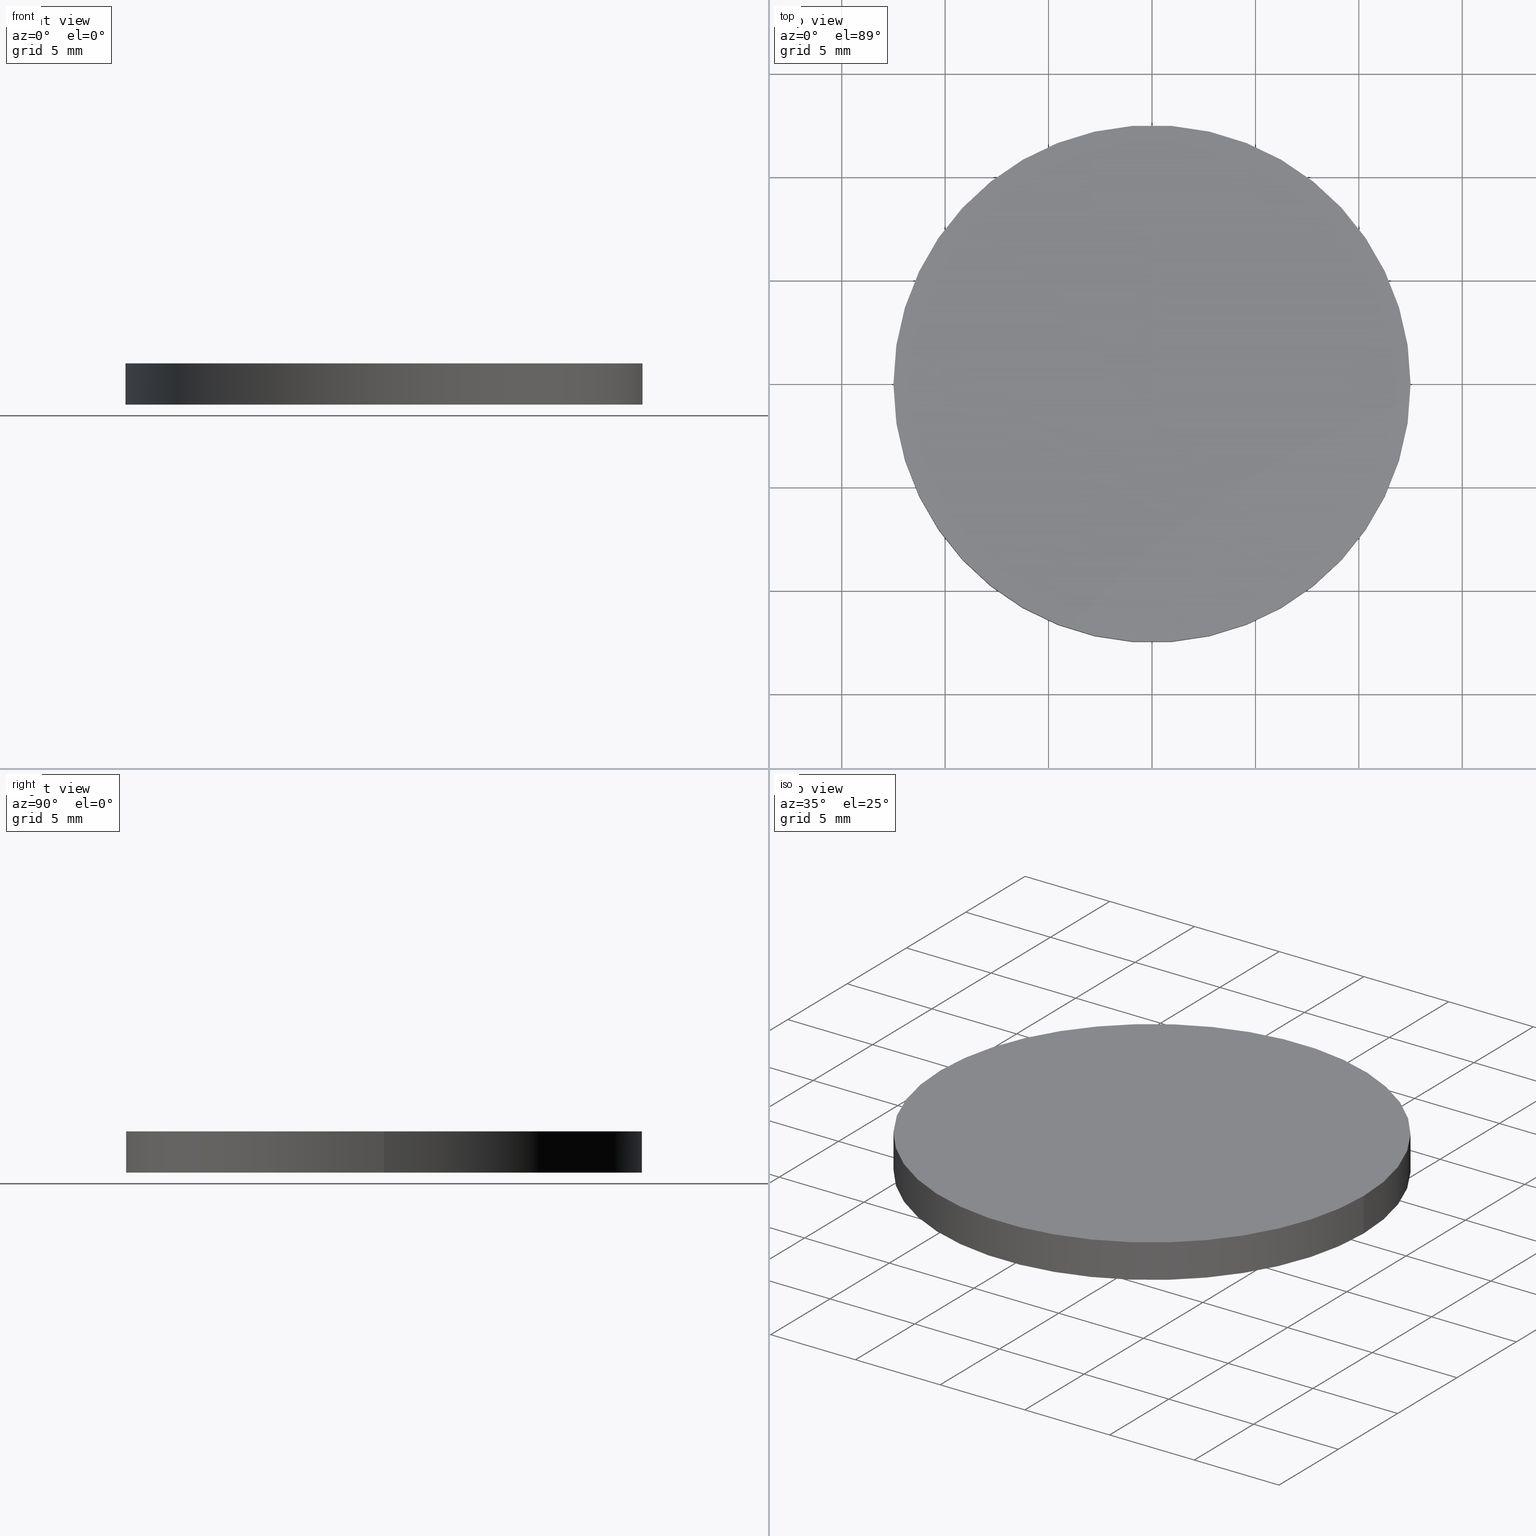
[diagram: canonical four-view strip — front | top / right | iso, engineering-drawing reading convention]
A machine part, canonical four-view strip (front | top / right | iso — engineering-drawing reading convention). The complete STEP part file that produces these views, byte-faithful:
ISO-10303-21;
HEADER;
FILE_DESCRIPTION (( 'STEP AP214' ),
    '1' );
FILE_NAME ('190165.STEP',
    '2019-07-18T08:29:09',
    ( 'user' ),
    ( '΢���й�' ),
    'SwSTEP 2.0',
    'SolidWorks 2016',
    '' );
FILE_SCHEMA (( 'AUTOMOTIVE_DESIGN' ));
ENDSEC;

DATA;
#1 = CARTESIAN_POINT ( 'NONE',  ( -12.50000000000000000, 0.0000000000000000000, 0.0000000000000000000 ) ) ;
#2 = PRODUCT_DEFINITION ( 'δ֪', '', #130, #116 ) ;
#3 = PRODUCT_RELATED_PRODUCT_CATEGORY ( 'part', '', ( #112 ) ) ;
#4 = ADVANCED_BREP_SHAPE_REPRESENTATION ( '190165', ( #118, #8 ), #49 ) ;
#5 = PRESENTATION_LAYER_ASSIGNMENT (  '', '', ( #79 ) ) ;
#6 = AXIS2_PLACEMENT_3D ( 'NONE', #138, #137, #64 ) ;
#7 = EDGE_CURVE ( 'NONE', #50, #30, #58, .T. ) ;
#8 = AXIS2_PLACEMENT_3D ( 'NONE', #105, #83, #9 ) ;
#9 = DIRECTION ( 'NONE',  ( 1.000000000000000000, 0.0000000000000000000, 0.0000000000000000000 ) ) ;
#10 = AXIS2_PLACEMENT_3D ( 'NONE', #12, #44, #52 ) ;
#11 =( NAMED_UNIT ( * ) SI_UNIT ( $, .STERADIAN. ) SOLID_ANGLE_UNIT ( ) );
#12 = CARTESIAN_POINT ( 'NONE',  ( 0.0000000000000000000, 0.0000000000000000000, 2.000000000000000000 ) ) ;
#13 = DIRECTION ( 'NONE',  ( 1.000000000000000000, 0.0000000000000000000, 0.0000000000000000000 ) ) ;
#14 = ADVANCED_FACE ( 'NONE', ( #55 ), #32, .T. ) ;
#15 = DIRECTION ( 'NONE',  ( -0.0000000000000000000, -0.0000000000000000000, -1.000000000000000000 ) ) ;
#16 = CARTESIAN_POINT ( 'NONE',  ( -12.50000000000000000, 0.0000000000000000000, 2.000000000000000000 ) ) ;
#17 = AXIS2_PLACEMENT_3D ( 'NONE', #66, #15, #39 ) ;
#18 = CIRCLE ( 'NONE', #131, 12.50000000000000000 ) ;
#19 = AXIS2_PLACEMENT_3D ( 'NONE', #56, #114, #46 ) ;
#20 = LINE ( 'NONE', #54, #96 ) ;
#21 = EDGE_CURVE ( 'NONE', #81, #61, #47, .T. ) ;
#22 = ORIENTED_EDGE ( 'NONE', *, *, #21, .F. ) ;
#23 = COLOUR_RGB ( '',1.000000000000000000, 1.000000000000000000, 1.000000000000000000 ) ;
#24 = UNCERTAINTY_MEASURE_WITH_UNIT (LENGTH_MEASURE( 1.000000000000000100E-005 ), #104, 'distance_accuracy_value', 'NONE');
#25 =( GEOMETRIC_REPRESENTATION_CONTEXT ( 3 ) GLOBAL_UNCERTAINTY_ASSIGNED_CONTEXT ( ( #93 ) ) GLOBAL_UNIT_ASSIGNED_CONTEXT ( ( #38, #97, #26 ) ) REPRESENTATION_CONTEXT ( 'NONE', 'WORKASPACE' ) );
#26 =( NAMED_UNIT ( * ) SI_UNIT ( $, .STERADIAN. ) SOLID_ANGLE_UNIT ( ) );
#27 = AXIS2_PLACEMENT_3D ( 'NONE', #57, #101, #40 ) ;
#28 = CARTESIAN_POINT ( 'NONE',  ( 0.0000000000000000000, 0.0000000000000000000, 2.000000000000000000 ) ) ;
#29 = DIRECTION ( 'NONE',  ( -0.0000000000000000000, -0.0000000000000000000, -1.000000000000000000 ) ) ;
#30 = VERTEX_POINT ( 'NONE', #16 ) ;
#31 = DIRECTION ( 'NONE',  ( 1.000000000000000000, 0.0000000000000000000, -0.0000000000000000000 ) ) ;
#32 = PLANE ( 'NONE',  #41 ) ;
#33 = STYLED_ITEM ( 'NONE', ( #42 ), #4 ) ;
#34 = SHAPE_DEFINITION_REPRESENTATION ( #117, #4 ) ;
#35 = EDGE_LOOP ( 'NONE', ( #139, #132 ) ) ;
#36 = FACE_OUTER_BOUND ( 'NONE', #128, .T. ) ;
#37 =( NAMED_UNIT ( * ) PLANE_ANGLE_UNIT ( ) SI_UNIT ( $, .RADIAN. ) );
#38 =( LENGTH_UNIT ( ) NAMED_UNIT ( * ) SI_UNIT ( .MILLI., .METRE. ) );
#39 = DIRECTION ( 'NONE',  ( -1.000000000000000000, 0.0000000000000000000, 0.0000000000000000000 ) ) ;
#40 = DIRECTION ( 'NONE',  ( 1.000000000000000000, 0.0000000000000000000, 0.0000000000000000000 ) ) ;
#41 = AXIS2_PLACEMENT_3D ( 'NONE', #129, #99, #31 ) ;
#42 = PRESENTATION_STYLE_ASSIGNMENT (( #43 ) ) ;
#43 = SURFACE_STYLE_USAGE ( .BOTH. , #111 ) ;
#44 = DIRECTION ( 'NONE',  ( -0.0000000000000000000, -0.0000000000000000000, -1.000000000000000000 ) ) ;
#45 = SURFACE_STYLE_USAGE ( .BOTH. , #113 ) ;
#46 = DIRECTION ( 'NONE',  ( 1.000000000000000000, 0.0000000000000000000, 0.0000000000000000000 ) ) ;
#47 = CIRCLE ( 'NONE', #19, 12.50000000000000000 ) ;
#48 = ORIENTED_EDGE ( 'NONE', *, *, #70, .T. ) ;
#49 =( GEOMETRIC_REPRESENTATION_CONTEXT ( 3 ) GLOBAL_UNCERTAINTY_ASSIGNED_CONTEXT ( ( #73 ) ) GLOBAL_UNIT_ASSIGNED_CONTEXT ( ( #123, #85, #11 ) ) REPRESENTATION_CONTEXT ( 'NONE', 'WORKASPACE' ) );
#50 = VERTEX_POINT ( 'NONE', #127 ) ;
#51 = FILL_AREA_STYLE ('',( #106 ) ) ;
#52 = DIRECTION ( 'NONE',  ( -1.000000000000000000, 0.0000000000000000000, 0.0000000000000000000 ) ) ;
#53 = DIRECTION ( 'NONE',  ( 1.000000000000000000, 0.0000000000000000000, 0.0000000000000000000 ) ) ;
#54 = CARTESIAN_POINT ( 'NONE',  ( 12.50000000000000000, 1.530808498934191500E-015, 2.000000000000000000 ) ) ;
#55 = FACE_OUTER_BOUND ( 'NONE', #35, .T. ) ;
#56 = CARTESIAN_POINT ( 'NONE',  ( 0.0000000000000000000, 0.0000000000000000000, 0.0000000000000000000 ) ) ;
#57 = CARTESIAN_POINT ( 'NONE',  ( 0.0000000000000000000, 0.0000000000000000000, 2.000000000000000000 ) ) ;
#58 = CIRCLE ( 'NONE', #27, 12.50000000000000000 ) ;
#59 = ORIENTED_EDGE ( 'NONE', *, *, #107, .F. ) ;
#60 = CYLINDRICAL_SURFACE ( 'NONE', #17, 12.50000000000000000 ) ;
#61 = VERTEX_POINT ( 'NONE', #1 ) ;
#62 = ORIENTED_EDGE ( 'NONE', *, *, #115, .F. ) ;
#63 = APPLICATION_PROTOCOL_DEFINITION ( 'draft international standard', 'automotive_design', 1998, #135 ) ;
#64 = DIRECTION ( 'NONE',  ( 1.000000000000000000, 0.0000000000000000000, -0.0000000000000000000 ) ) ;
#65 = CARTESIAN_POINT ( 'NONE',  ( 0.0000000000000000000, 0.0000000000000000000, 0.0000000000000000000 ) ) ;
#66 = CARTESIAN_POINT ( 'NONE',  ( 0.0000000000000000000, 0.0000000000000000000, 2.000000000000000000 ) ) ;
#67 = CYLINDRICAL_SURFACE ( 'NONE', #10, 12.50000000000000000 ) ;
#68 = MECHANICAL_DESIGN_GEOMETRIC_PRESENTATION_REPRESENTATION (  '', ( #79 ), #25 ) ;
#69 = EDGE_LOOP ( 'NONE', ( #84, #87, #120, #92 ) ) ;
#70 = EDGE_CURVE ( 'NONE', #30, #61, #80, .T. ) ;
#71 = CIRCLE ( 'NONE', #134, 12.50000000000000000 ) ;
#72 = PRODUCT_CONTEXT ( 'NONE', #122, 'mechanical' ) ;
#73 = UNCERTAINTY_MEASURE_WITH_UNIT (LENGTH_MEASURE( 1.000000000000000100E-005 ), #123, 'distance_accuracy_value', 'NONE');
#74 = FACE_OUTER_BOUND ( 'NONE', #69, .T. ) ;
#75 = FILL_AREA_STYLE ('',( #88 ) ) ;
#76 = CARTESIAN_POINT ( 'NONE',  ( -12.50000000000000000, 0.0000000000000000000, 2.000000000000000000 ) ) ;
#77 = ADVANCED_FACE ( 'NONE', ( #74 ), #60, .T. ) ;
#78 = EDGE_LOOP ( 'NONE', ( #121, #59, #48, #100 ) ) ;
#79 = STYLED_ITEM ( 'NONE', ( #90 ), #118 ) ;
#80 = LINE ( 'NONE', #76, #133 ) ;
#81 = VERTEX_POINT ( 'NONE', #140 ) ;
#82 =( GEOMETRIC_REPRESENTATION_CONTEXT ( 3 ) GLOBAL_UNCERTAINTY_ASSIGNED_CONTEXT ( ( #24 ) ) GLOBAL_UNIT_ASSIGNED_CONTEXT ( ( #104, #37, #95 ) ) REPRESENTATION_CONTEXT ( 'NONE', 'WORKASPACE' ) );
#83 = DIRECTION ( 'NONE',  ( 0.0000000000000000000, 0.0000000000000000000, 1.000000000000000000 ) ) ;
#84 = ORIENTED_EDGE ( 'NONE', *, *, #7, .F. ) ;
#85 =( NAMED_UNIT ( * ) PLANE_ANGLE_UNIT ( ) SI_UNIT ( $, .RADIAN. ) );
#86 = DIRECTION ( 'NONE',  ( 0.0000000000000000000, 0.0000000000000000000, 1.000000000000000000 ) ) ;
#87 = ORIENTED_EDGE ( 'NONE', *, *, #102, .T. ) ;
#88 = FILL_AREA_STYLE_COLOUR ( '', #23 ) ;
#89 = CLOSED_SHELL ( 'NONE', ( #77, #124, #14, #119 ) ) ;
#90 = PRESENTATION_STYLE_ASSIGNMENT (( #45 ) ) ;
#91 = MECHANICAL_DESIGN_GEOMETRIC_PRESENTATION_REPRESENTATION (  '', ( #33 ), #82 ) ;
#92 = ORIENTED_EDGE ( 'NONE', *, *, #70, .F. ) ;
#93 = UNCERTAINTY_MEASURE_WITH_UNIT (LENGTH_MEASURE( 1.000000000000000100E-005 ), #38, 'distance_accuracy_value', 'NONE');
#94 = FACE_OUTER_BOUND ( 'NONE', #78, .T. ) ;
#95 =( NAMED_UNIT ( * ) SI_UNIT ( $, .STERADIAN. ) SOLID_ANGLE_UNIT ( ) );
#96 = VECTOR ( 'NONE', #126, 1000.000000000000000 ) ;
#97 =( NAMED_UNIT ( * ) PLANE_ANGLE_UNIT ( ) SI_UNIT ( $, .RADIAN. ) );
#98 = PLANE ( 'NONE',  #6 ) ;
#99 = DIRECTION ( 'NONE',  ( 0.0000000000000000000, 0.0000000000000000000, 1.000000000000000000 ) ) ;
#100 = ORIENTED_EDGE ( 'NONE', *, *, #115, .T. ) ;
#101 = DIRECTION ( 'NONE',  ( 0.0000000000000000000, 0.0000000000000000000, 1.000000000000000000 ) ) ;
#102 = EDGE_CURVE ( 'NONE', #50, #81, #20, .T. ) ;
#103 = SURFACE_STYLE_FILL_AREA ( #75 ) ;
#104 =( LENGTH_UNIT ( ) NAMED_UNIT ( * ) SI_UNIT ( .MILLI., .METRE. ) );
#105 = CARTESIAN_POINT ( 'NONE',  ( 0.0000000000000000000, 0.0000000000000000000, 0.0000000000000000000 ) ) ;
#106 = FILL_AREA_STYLE_COLOUR ( '', #108 ) ;
#107 = EDGE_CURVE ( 'NONE', #30, #50, #71, .T. ) ;
#108 = COLOUR_RGB ( '',1.000000000000000000, 1.000000000000000000, 1.000000000000000000 ) ;
#109 = SURFACE_STYLE_FILL_AREA ( #51 ) ;
#110 = PRESENTATION_LAYER_ASSIGNMENT (  '', '', ( #33 ) ) ;
#111 = SURFACE_SIDE_STYLE ('',( #109 ) ) ;
#112 = PRODUCT ( '190165', '190165', '', ( #72 ) ) ;
#113 = SURFACE_SIDE_STYLE ('',( #103 ) ) ;
#114 = DIRECTION ( 'NONE',  ( 0.0000000000000000000, 0.0000000000000000000, 1.000000000000000000 ) ) ;
#115 = EDGE_CURVE ( 'NONE', #61, #81, #18, .T. ) ;
#116 = PRODUCT_DEFINITION_CONTEXT ( 'detailed design', #135, 'design' ) ;
#117 = PRODUCT_DEFINITION_SHAPE ( 'NONE', 'NONE',  #2 ) ;
#118 = MANIFOLD_SOLID_BREP ( '͹̨-����1', #89 ) ;
#119 = ADVANCED_FACE ( 'NONE', ( #36 ), #98, .F. ) ;
#120 = ORIENTED_EDGE ( 'NONE', *, *, #21, .T. ) ;
#121 = ORIENTED_EDGE ( 'NONE', *, *, #102, .F. ) ;
#122 = APPLICATION_CONTEXT ( 'automotive_design' ) ;
#123 =( LENGTH_UNIT ( ) NAMED_UNIT ( * ) SI_UNIT ( .MILLI., .METRE. ) );
#124 = ADVANCED_FACE ( 'NONE', ( #94 ), #67, .T. ) ;
#125 = DIRECTION ( 'NONE',  ( 0.0000000000000000000, 0.0000000000000000000, 1.000000000000000000 ) ) ;
#126 = DIRECTION ( 'NONE',  ( -0.0000000000000000000, -0.0000000000000000000, -1.000000000000000000 ) ) ;
#127 = CARTESIAN_POINT ( 'NONE',  ( 12.50000000000000000, 1.530808498934191500E-015, 2.000000000000000000 ) ) ;
#128 = EDGE_LOOP ( 'NONE', ( #62, #22 ) ) ;
#129 = CARTESIAN_POINT ( 'NONE',  ( 0.0000000000000000000, 0.0000000000000000000, 2.000000000000000000 ) ) ;
#130 = PRODUCT_DEFINITION_FORMATION_WITH_SPECIFIED_SOURCE ( '�κ�', '', #112, .NOT_KNOWN. ) ;
#131 = AXIS2_PLACEMENT_3D ( 'NONE', #65, #125, #53 ) ;
#132 = ORIENTED_EDGE ( 'NONE', *, *, #7, .T. ) ;
#133 = VECTOR ( 'NONE', #29, 1000.000000000000000 ) ;
#134 = AXIS2_PLACEMENT_3D ( 'NONE', #28, #86, #13 ) ;
#135 = APPLICATION_CONTEXT ( 'automotive_design' ) ;
#136 = APPLICATION_PROTOCOL_DEFINITION ( 'draft international standard', 'automotive_design', 1998, #122 ) ;
#137 = DIRECTION ( 'NONE',  ( 0.0000000000000000000, 0.0000000000000000000, 1.000000000000000000 ) ) ;
#138 = CARTESIAN_POINT ( 'NONE',  ( 0.0000000000000000000, 0.0000000000000000000, 0.0000000000000000000 ) ) ;
#139 = ORIENTED_EDGE ( 'NONE', *, *, #107, .T. ) ;
#140 = CARTESIAN_POINT ( 'NONE',  ( 12.50000000000000000, 1.530808498934191500E-015, 0.0000000000000000000 ) ) ;
ENDSEC;
END-ISO-10303-21;
